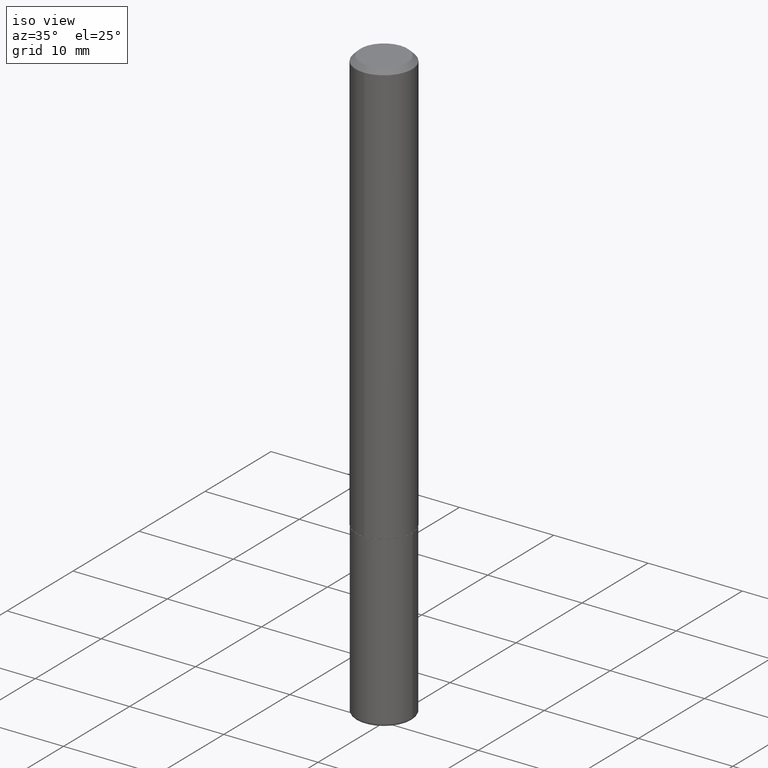
[diagram: clean part render]
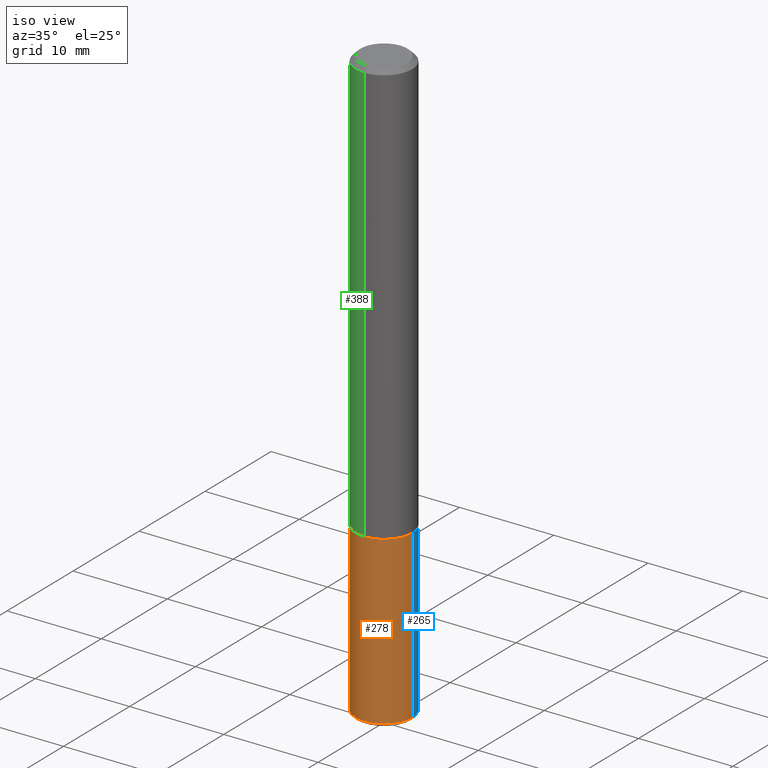
[diagram: same view with three faces highlighted in distinct colors, each labeled with its STEP entity id]
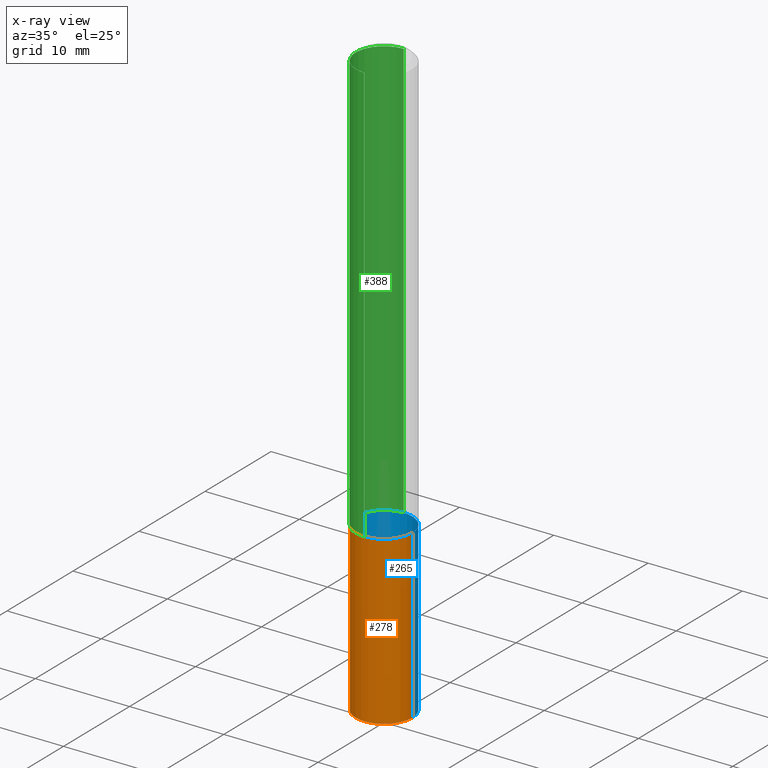
[diagram: x-ray of the same camera — body ghosted, the three highlighted faces saturated]
A machine part, iso view with three faces highlighted in distinct colors.
The next image is the same camera in x-ray (body ghosted, the three faces saturated) — at least one of them is partly hidden behind the body in this view.
Their STEP definitions:

[orange] entity #278 — the highlighted cylindrical surface (edge-blend (fillet) strip) has radius 2.9997 mm, axis along (-0, 0, 1).
#5 = VECTOR ( 'NONE', #29, 39.37007874015748143 ) ;
#13 = CARTESIAN_POINT ( 'NONE',  ( -0.1180999999999999966, 8.391509709326782957E-16, -5.809262341591043784E-30 ) ) ;
#19 = DIRECTION ( 'NONE',  ( -2.445468806185136877E-29, 3.491481338843145188E-15, 1.000000000000000000 ) ) ;
#21 = CARTESIAN_POINT ( 'NONE',  ( 6.036639748068010694E-29, -8.618721684934306273E-15, -2.468500000000000139 ) ) ;
#29 = DIRECTION ( 'NONE',  ( -2.445468806185136877E-29, 3.491481338843145188E-15, 1.000000000000000000 ) ) ;
#33 = LINE ( 'NONE', #238, #5 ) ;
#50 = LINE ( 'NONE', #13, #84 ) ;
#54 = EDGE_CURVE ( 'NONE', #290, #233, #50, .T. ) ;
#68 = DIRECTION ( 'NONE',  ( -2.445468806185136597E-29, 3.491481338843145583E-15, 1.000000000000000000 ) ) ;
#70 = CYLINDRICAL_SURFACE ( 'NONE', #218, 0.1180999999999999966 ) ;
#84 = VECTOR ( 'NONE', #19, 39.37007874015748143 ) ;
#111 = CIRCLE ( 'NONE', #267, 0.1180999999999999966 ) ;
#121 = EDGE_CURVE ( 'NONE', #290, #309, #375, .T. ) ;
#128 = FACE_OUTER_BOUND ( 'NONE', #144, .T. ) ;
#144 = EDGE_LOOP ( 'NONE', ( #297, #166, #368, #159 ) ) ;
#159 = ORIENTED_EDGE ( 'NONE', *, *, #254, .F. ) ;
#166 = ORIENTED_EDGE ( 'NONE', *, *, #121, .T. ) ;
#191 = CARTESIAN_POINT ( 'NONE',  ( 4.332392537037588763E-29, -6.185508339894517569E-15, -1.771600000000000286 ) ) ;
#198 = CARTESIAN_POINT ( 'NONE',  ( -0.1180999999999999966, -6.562964041481733724E-15, -1.771600000000000286 ) ) ;
#205 = DIRECTION ( 'NONE',  ( -2.445468806185136597E-29, 3.491481338843145583E-15, 1.000000000000000000 ) ) ;
#210 = AXIS2_PLACEMENT_3D ( 'NONE', #21, #255, #251 ) ;
#218 = AXIS2_PLACEMENT_3D ( 'NONE', #329, #205, #332 ) ;
#230 = VERTEX_POINT ( 'NONE', #377 ) ;
#233 = VERTEX_POINT ( 'NONE', #198 ) ;
#238 = CARTESIAN_POINT ( 'NONE',  ( 0.1180999999999999966, -8.246878922347480654E-16, 5.758764772215000440E-30 ) ) ;
#251 = DIRECTION ( 'NONE',  ( 1.000000000000000000, -6.982962677686265133E-15, 0.000000000000000000 ) ) ;
#254 = EDGE_CURVE ( 'NONE', #233, #230, #111, .T. ) ;
#255 = DIRECTION ( 'NONE',  ( -2.445468806185136597E-29, 3.491481338843145583E-15, 1.000000000000000000 ) ) ;
#267 = AXIS2_PLACEMENT_3D ( 'NONE', #191, #68, #357 ) ;
#269 = EDGE_CURVE ( 'NONE', #309, #230, #33, .T. ) ;
#278 = ADVANCED_FACE ( 'NONE', ( #128 ), #70, .T. ) ;
#290 = VERTEX_POINT ( 'NONE', #414 ) ;
#297 = ORIENTED_EDGE ( 'NONE', *, *, #54, .F. ) ;
#309 = VERTEX_POINT ( 'NONE', #386 ) ;
#329 = CARTESIAN_POINT ( 'NONE',  ( 0.000000000000000000, 0.000000000000000000, 0.000000000000000000 ) ) ;
#332 = DIRECTION ( 'NONE',  ( 1.000000000000000000, -6.982962677686266711E-15, 4.876176775795936353E-29 ) ) ;
#357 = DIRECTION ( 'NONE',  ( 1.000000000000000000, -6.982962677686265133E-15, 0.000000000000000000 ) ) ;
#368 = ORIENTED_EDGE ( 'NONE', *, *, #269, .T. ) ;
#375 = CIRCLE ( 'NONE', #210, 0.1180999999999999966 ) ;
#377 = CARTESIAN_POINT ( 'NONE',  ( 0.1180999999999999966, -7.010196232129265043E-15, -1.771600000000000286 ) ) ;
#386 = CARTESIAN_POINT ( 'NONE',  ( 0.1181000000000001632, -9.443409577169056114E-15, -2.468500000000000139 ) ) ;
#414 = CARTESIAN_POINT ( 'NONE',  ( -0.1181000000000001632, -7.779570714001625710E-15, -2.468500000000000139 ) ) ;

[blue] entity #265 — the highlighted cylindrical surface (edge-blend (fillet) strip) has radius 2.9997 mm, axis along (-0, 0, 1).
#1 = EDGE_CURVE ( 'NONE', #230, #233, #47, .T. ) ;
#5 = VECTOR ( 'NONE', #29, 39.37007874015748143 ) ;
#13 = CARTESIAN_POINT ( 'NONE',  ( -0.1180999999999999966, 8.391509709326782957E-16, -5.809262341591043784E-30 ) ) ;
#19 = DIRECTION ( 'NONE',  ( -2.445468806185136877E-29, 3.491481338843145188E-15, 1.000000000000000000 ) ) ;
#29 = DIRECTION ( 'NONE',  ( -2.445468806185136877E-29, 3.491481338843145188E-15, 1.000000000000000000 ) ) ;
#33 = LINE ( 'NONE', #238, #5 ) ;
#38 = ORIENTED_EDGE ( 'NONE', *, *, #54, .T. ) ;
#45 = DIRECTION ( 'NONE',  ( 1.000000000000000000, -6.982962677686265133E-15, 0.000000000000000000 ) ) ;
#47 = CIRCLE ( 'NONE', #292, 0.1180999999999999966 ) ;
#50 = LINE ( 'NONE', #13, #84 ) ;
#54 = EDGE_CURVE ( 'NONE', #290, #233, #50, .T. ) ;
#63 = ORIENTED_EDGE ( 'NONE', *, *, #269, .F. ) ;
#65 = DIRECTION ( 'NONE',  ( 1.000000000000000000, -6.982962677686266711E-15, 4.876176775795936353E-29 ) ) ;
#84 = VECTOR ( 'NONE', #19, 39.37007874015748143 ) ;
#90 = DIRECTION ( 'NONE',  ( 1.000000000000000000, -6.982962677686265133E-15, 0.000000000000000000 ) ) ;
#100 = CIRCLE ( 'NONE', #151, 0.1180999999999999966 ) ;
#107 = EDGE_CURVE ( 'NONE', #309, #290, #100, .T. ) ;
#114 = ORIENTED_EDGE ( 'NONE', *, *, #107, .T. ) ;
#116 = CARTESIAN_POINT ( 'NONE',  ( 6.036639748068010694E-29, -8.618721684934306273E-15, -2.468500000000000139 ) ) ;
#133 = ORIENTED_EDGE ( 'NONE', *, *, #1, .F. ) ;
#143 = EDGE_LOOP ( 'NONE', ( #114, #38, #133, #63 ) ) ;
#151 = AXIS2_PLACEMENT_3D ( 'NONE', #116, #256, #90 ) ;
#198 = CARTESIAN_POINT ( 'NONE',  ( -0.1180999999999999966, -6.562964041481733724E-15, -1.771600000000000286 ) ) ;
#201 = FACE_OUTER_BOUND ( 'NONE', #143, .T. ) ;
#230 = VERTEX_POINT ( 'NONE', #377 ) ;
#231 = CARTESIAN_POINT ( 'NONE',  ( 0.000000000000000000, 0.000000000000000000, 0.000000000000000000 ) ) ;
#233 = VERTEX_POINT ( 'NONE', #198 ) ;
#238 = CARTESIAN_POINT ( 'NONE',  ( 0.1180999999999999966, -8.246878922347480654E-16, 5.758764772215000440E-30 ) ) ;
#256 = DIRECTION ( 'NONE',  ( -2.445468806185136597E-29, 3.491481338843145583E-15, 1.000000000000000000 ) ) ;
#265 = ADVANCED_FACE ( 'NONE', ( #201 ), #392, .T. ) ;
#269 = EDGE_CURVE ( 'NONE', #309, #230, #33, .T. ) ;
#290 = VERTEX_POINT ( 'NONE', #414 ) ;
#292 = AXIS2_PLACEMENT_3D ( 'NONE', #336, #371, #45 ) ;
#309 = VERTEX_POINT ( 'NONE', #386 ) ;
#334 = AXIS2_PLACEMENT_3D ( 'NONE', #231, #364, #65 ) ;
#336 = CARTESIAN_POINT ( 'NONE',  ( 4.332392537037588763E-29, -6.185508339894517569E-15, -1.771600000000000286 ) ) ;
#364 = DIRECTION ( 'NONE',  ( -2.445468806185136597E-29, 3.491481338843145583E-15, 1.000000000000000000 ) ) ;
#371 = DIRECTION ( 'NONE',  ( -2.445468806185136597E-29, 3.491481338843145583E-15, 1.000000000000000000 ) ) ;
#377 = CARTESIAN_POINT ( 'NONE',  ( 0.1180999999999999966, -7.010196232129265043E-15, -1.771600000000000286 ) ) ;
#386 = CARTESIAN_POINT ( 'NONE',  ( 0.1181000000000001632, -9.443409577169056114E-15, -2.468500000000000139 ) ) ;
#392 = CYLINDRICAL_SURFACE ( 'NONE', #334, 0.1180999999999999966 ) ;
#414 = CARTESIAN_POINT ( 'NONE',  ( -0.1181000000000001632, -7.779570714001625710E-15, -2.468500000000000139 ) ) ;

[green] entity #388 — the highlighted cylindrical surface (edge-blend (fillet) strip) has radius 2.9997 mm, axis along (-0, 0, 1).
#9 = VERTEX_POINT ( 'NONE', #176 ) ;
#34 = AXIS2_PLACEMENT_3D ( 'NONE', #186, #95, #120 ) ;
#53 = CARTESIAN_POINT ( 'NONE',  ( 8.391509709327014685E-16, 0.1180999999999940708, -1.770600000000000840 ) ) ;
#55 = DIRECTION ( 'NONE',  ( -2.443238767566187138E-29, 3.494674881071397310E-15, 1.000000000000000000 ) ) ;
#64 = VECTOR ( 'NONE', #408, 39.37007874015748143 ) ;
#77 = VERTEX_POINT ( 'NONE', #406 ) ;
#80 = CIRCLE ( 'NONE', #390, 0.1181000000000002326 ) ;
#91 = FACE_OUTER_BOUND ( 'NONE', #134, .T. ) ;
#95 = DIRECTION ( 'NONE',  ( -2.443238767566187138E-29, 3.494674881071396916E-15, 1.000000000000000000 ) ) ;
#113 = LINE ( 'NONE', #217, #127 ) ;
#118 = CIRCLE ( 'NONE', #34, 0.1180999999999999966 ) ;
#120 = DIRECTION ( 'NONE',  ( -6.982962677686265922E-15, -1.000000000000000000, 3.505890868245046092E-15 ) ) ;
#127 = VECTOR ( 'NONE', #55, 39.37007874015748143 ) ;
#134 = EDGE_LOOP ( 'NONE', ( #167, #296, #228, #240 ) ) ;
#154 = DIRECTION ( 'NONE',  ( -2.443238767566187138E-29, 3.494674881071396916E-15, 1.000000000000000000 ) ) ;
#167 = ORIENTED_EDGE ( 'NONE', *, *, #324, .F. ) ;
#176 = CARTESIAN_POINT ( 'NONE',  ( 8.246878922347484598E-16, 0.1180999999999999273, -0.02000000000000045838 ) ) ;
#186 = CARTESIAN_POINT ( 'NONE',  ( 4.886477535132384121E-31, -6.989349762142808870E-17, -0.02000000000000004205 ) ) ;
#204 = EDGE_CURVE ( 'NONE', #271, #77, #113, .T. ) ;
#213 = EDGE_CURVE ( 'NONE', #330, #271, #80, .T. ) ;
#217 = CARTESIAN_POINT ( 'NONE',  ( -8.246878922347488542E-16, -0.1181000000000001215, 4.127211034545323724E-16 ) ) ;
#225 = CYLINDRICAL_SURFACE ( 'NONE', #242, 0.1181000000000001215 ) ;
#228 = ORIENTED_EDGE ( 'NONE', *, *, #204, .T. ) ;
#240 = ORIENTED_EDGE ( 'NONE', *, *, #373, .F. ) ;
#242 = AXIS2_PLACEMENT_3D ( 'NONE', #402, #257, #381 ) ;
#253 = LINE ( 'NONE', #284, #64 ) ;
#257 = DIRECTION ( 'NONE',  ( -2.443238767566187138E-29, 3.494674881071396916E-15, 1.000000000000000000 ) ) ;
#271 = VERTEX_POINT ( 'NONE', #360 ) ;
#284 = CARTESIAN_POINT ( 'NONE',  ( 8.391509709326790846E-16, 0.1181000000000001215, -4.127211034545323724E-16 ) ) ;
#296 = ORIENTED_EDGE ( 'NONE', *, *, #213, .T. ) ;
#320 = DIRECTION ( 'NONE',  ( -6.982962677686265922E-15, -1.000000000000000000, 4.626330217890360659E-15 ) ) ;
#324 = EDGE_CURVE ( 'NONE', #330, #9, #253, .T. ) ;
#330 = VERTEX_POINT ( 'NONE', #53 ) ;
#348 = CARTESIAN_POINT ( 'NONE',  ( 4.325998561852691348E-29, -6.187671344425017014E-15, -1.770600000000000174 ) ) ;
#360 = CARTESIAN_POINT ( 'NONE',  ( -8.246878922347063544E-16, -0.1181000000000064221, -1.770599999999999730 ) ) ;
#373 = EDGE_CURVE ( 'NONE', #9, #77, #118, .T. ) ;
#381 = DIRECTION ( 'NONE',  ( -6.982962677686265922E-15, -1.000000000000000000, 3.494674881071396522E-15 ) ) ;
#388 = ADVANCED_FACE ( 'NONE', ( #91 ), #225, .T. ) ;
#390 = AXIS2_PLACEMENT_3D ( 'NONE', #348, #154, #320 ) ;
#402 = CARTESIAN_POINT ( 'NONE',  ( 0.000000000000000000, 0.000000000000000000, 0.000000000000000000 ) ) ;
#406 = CARTESIAN_POINT ( 'NONE',  ( -8.102248135368172434E-16, -0.1181000000000000660, -0.01999999999999962919 ) ) ;
#408 = DIRECTION ( 'NONE',  ( -2.443238767566187138E-29, 3.494674881071397310E-15, 1.000000000000000000 ) ) ;